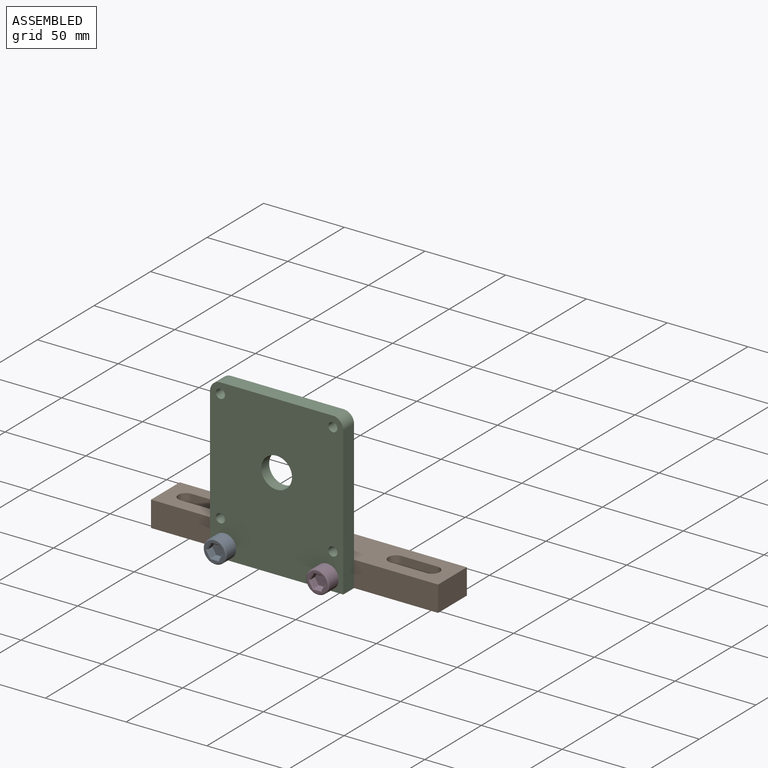
[diagram: assembled view]
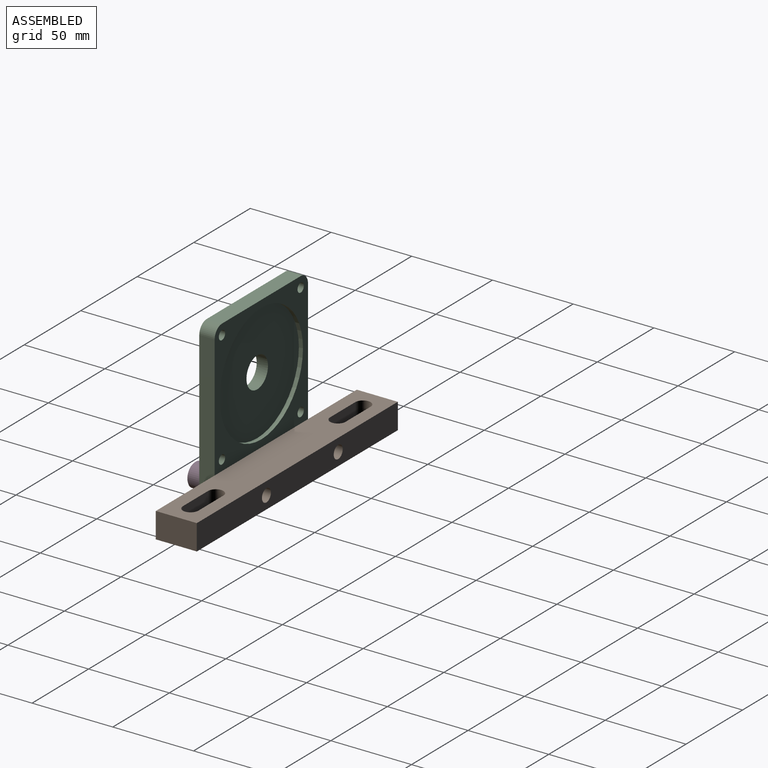
[diagram: assembled view, second angle]
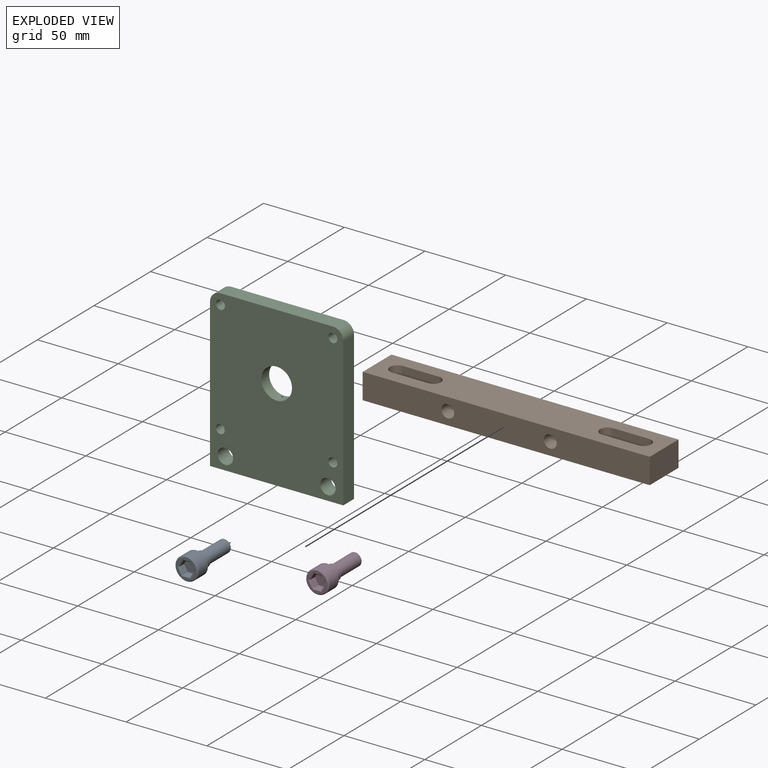
[diagram: exploded view]
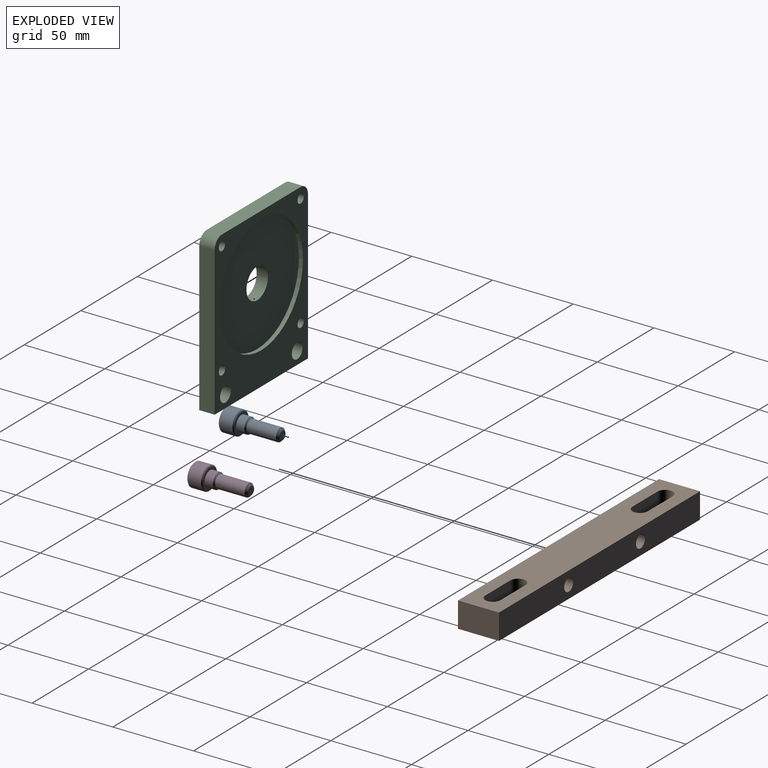
[diagram: exploded view, second angle]
ASSEMBLY  parts=4 mates=3
PART A: 23 faces, bbox 34.9x14.3x14.3 mm
  f0: plane 13.01x13mm, normal (1,0,0), area 58mm2, adj f14,f15,f16,f17,f18,f19,f20
  f1: plane 5.4x5.4mm, normal (-1,0,0), area 22.9mm2, adj f22
  f2: cylinder r=7.14mm len=14.28mm, axis (-1,0,0), area 370.2mm2, adj f13,f20
  f3: plane 13.01x13mm, normal (-1,0,0), area 61.6mm2, adj f4,f13
  f4: cylinder r=4.76mm len=9.53mm, axis (-1,0,0), area 152mm2, adj f3,f21
  f5: cylinder r=3.97mm len=18.26mm, axis (-1,0,0), area 455.2mm2, adj f21,f22
  f6: plane 4x3.99mm, normal (0,-0.51,0.86), area 18.5mm2, adj f7,f11,f12,f14
  f7: plane 4.63x3.99mm, normal (0,-1,-0.01), area 18.5mm2, adj f6,f8,f12,f16
  f8: plane 4.03x3.99mm, normal (0,-0.49,-0.87), area 18.5mm2, adj f7,f9,f12,f18
  f9: plane 4x3.99mm, normal (0,0.51,-0.86), area 18.5mm2, adj f8,f10,f12,f19
  f10: plane 4.63x3.99mm, normal (0,1,0.01), area 18.5mm2, adj f9,f11,f12,f17
  f11: plane 4.03x3.99mm, normal (0,0.49,0.87), area 18.5mm2, adj f6,f10,f12,f15
  f12: plane 9.27x8.06mm, normal (1,0,0), area 55.8mm2, adj f6,f7,f8,f9,f10,f11
  f13: cone r=6.5mm half-angle=45deg, axis (1,0,0), area 38.5mm2, adj f2,f3
  f14: plane 4.63x3.08mm, normal (0.71,-0.36,0.61), area 4.5mm2, adj f0,f6,f15,f16
  f15: plane 4.67x3.02mm, normal (0.71,0.35,0.62), area 4.5mm2, adj f0,f11,f14,f17
  f16: plane 5.37x0.67mm, normal (0.71,-0.71,-0.01), area 4.5mm2, adj f0,f7,f14,f18
  f17: plane 5.37x0.67mm, normal (0.71,0.71,0.01), area 4.5mm2, adj f0,f10,f15,f19
  f18: plane 4.67x3.02mm, normal (0.71,-0.35,-0.62), area 4.5mm2, adj f0,f8,f16,f19
  f19: plane 4.63x3.08mm, normal (0.71,0.36,-0.61), area 4.5mm2, adj f0,f9,f17,f18
  f20: cone r=7.14mm half-angle=45deg, axis (-1,0,0), area 38.5mm2, adj f0,f2
  f21: cone r=3.49mm half-angle=45deg, axis (1,0,0), area 30.8mm2, adj f4,f5
  f22: cone r=2.7mm half-angle=45deg, axis (1,0,0), area 37.6mm2, adj f1,f5
PART B: 16 faces, bbox 177.8x25.4x15.9 mm
  f0: plane 22.23x15.88mm, normal (0,-1,0), area 352.8mm2, adj f1,f11,f12,f13
  f1: cylinder r=4.76mm len=15.88mm, axis (0,0,-1), area 237.5mm2, adj f0,f2,f12,f13
  f2: plane 22.23x15.88mm, normal (0,1,0), area 352.8mm2, adj f1,f11,f12,f13
  f3: plane 25.4x15.88mm, normal (1,0,0), area 403.2mm2, adj f4,f9,f12,f13
  f4: plane 177.8x15.88mm, normal (0,1,0), area 2723.6mm2, adj f3,f5,f12,f13,f14,f15
  f5: plane 25.4x15.88mm, normal (-1,0,0), area 403.2mm2, adj f4,f9,f12,f13
  f6: cylinder r=4.76mm len=15.88mm, axis (0,0,-1), area 237.5mm2, adj f7,f10,f12,f13
  f7: plane 22.23x15.88mm, normal (0,1,0), area 352.8mm2, adj f6,f8,f12,f13
  f8: cylinder r=4.76mm len=15.88mm, axis (0,0,-1), area 237.5mm2, adj f7,f10,f12,f13
  f9: plane 177.8x15.88mm, normal (0,-1,0), area 2723.6mm2, adj f3,f5,f12,f13,f14,f15
  f10: plane 22.23x15.88mm, normal (0,-1,0), area 352.8mm2, adj f6,f8,f12,f13
  f11: cylinder r=4.76mm len=15.88mm, axis (0,0,-1), area 237.5mm2, adj f0,f2,f12,f13
  f12: plane 177.8x25.4mm, normal (0,0,1), area 3950.2mm2, adj f0,f1,f2,f3,f4,f5,f6,f7
  f13: plane 177.8x25.4mm, normal (0,0,-1), area 3950.2mm2, adj f0,f1,f2,f3,f4,f5,f6,f7
  f14: cylinder r=3.97mm len=25.4mm, axis (0,1,0), area 633.4mm2, adj f4,f9
  f15: cylinder r=3.97mm len=25.4mm, axis (0,1,0), area 633.4mm2, adj f4,f9
PART C: 17 faces, bbox 82.6x9.5x98.4 mm
  f0: plane 69.62x9.53mm, normal (0,0,1), area 663.1mm2, adj f1,f7,f12,f13
  f1: cylinder r=6.47mm len=9.53mm, axis (0,1,0), area 96.8mm2, adj f0,f2,f12,f13
  f2: plane 91.96x9.53mm, normal (-1,0,0), area 875.9mm2, adj f1,f3,f12,f13
  f3: plane 82.55x9.53mm, normal (0,0,-1), area 786.3mm2, adj f2,f4,f12,f13
  f4: plane 91.96x9.53mm, normal (1,0,0), area 875.9mm2, adj f3,f7,f12,f13
  f5: cylinder r=4.76mm len=9.53mm, axis (0,1,0), area 285mm2, adj f12,f13
  f6: cylinder r=4.76mm len=9.53mm, axis (0,1,0), area 285mm2, adj f12,f13
  f7: cylinder r=6.47mm len=9.53mm, axis (0,1,0), area 96.8mm2, adj f0,f4,f12,f13
  f8: cylinder r=2.79mm len=9.53mm, axis (0,1,0), area 167.2mm2, adj f12,f13
  f9: cylinder r=2.79mm len=9.53mm, axis (0,1,0), area 167.2mm2, adj f12,f13
  f10: cylinder r=2.79mm len=9.53mm, axis (0,1,0), area 167.2mm2, adj f12,f13
  f11: cylinder r=2.79mm len=9.53mm, axis (0,1,0), area 167.2mm2, adj f12,f13
  f12: plane 98.43x82.55mm, normal (0,-1,0), area 3605mm2, adj f0,f1,f2,f3,f4,f5,f6,f7
  f13: plane 98.43x82.55mm, normal (0,1,0), area 7581.4mm2, adj f0,f1,f2,f3,f4,f5,f6,f7
  f14: cylinder r=36.83mm len=73.66mm, axis (0,-1,0), area 587.8mm2, adj f12,f15
  f15: plane 73.66x73.66mm, normal (0,-1,0), area 3976.4mm2, adj f14,f16
  f16: cylinder r=9.53mm len=19.05mm, axis (0,-1,0), area 418mm2, adj f13,f15
PART D: same geometry as A
PLACE A rot(axis=(0.58,-0.58,-0.58),120deg) t=(-191.25,-26.53,68.95)mm
PLACE B t=(-91.55,-7.48,61.01)mm
PLACE C rot(axis=(0,0,1),180deg) t=(-118.22,-17,61.01)mm
PLACE D rot(axis=(0.58,-0.58,-0.58),120deg) t=(-127.75,-26.53,68.95)mm
MATE fastened A.f2 <-> C.f5  axis (0,1,0) through (-216.65,-17,68.95)mm
MATE fastened C.f5 <-> B.f15  axis (0,1,0) through (-216.65,-7.48,68.95)mm
MATE fastened D.f2 <-> C.f6  axis (0,1,0) through (-153.15,-17,68.95)mm
